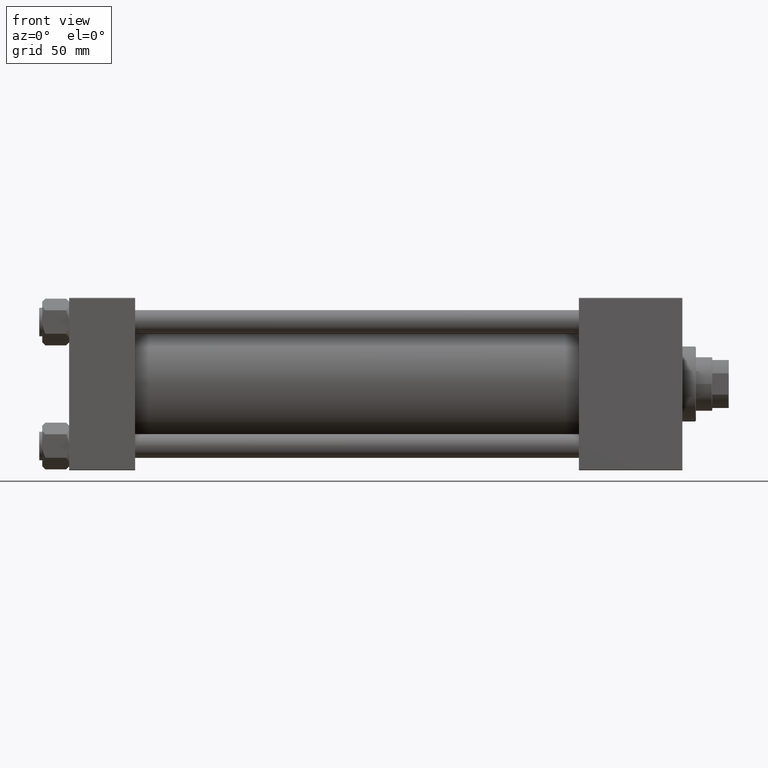
[diagram: clean part render]
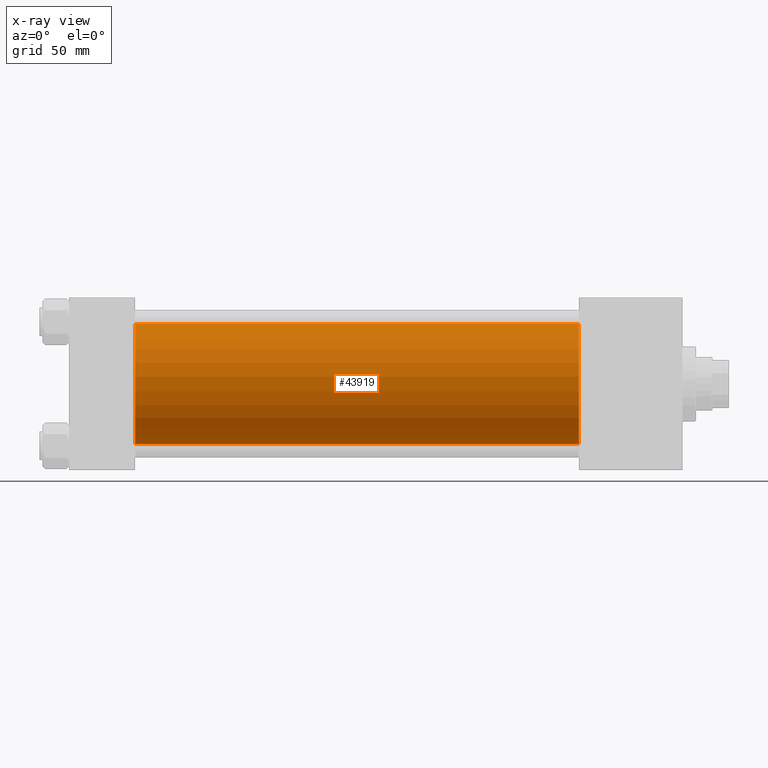
[diagram: x-ray — body ghosted, one internal face saturated and labeled with its STEP entity id]
A machine part, front view, then the same camera in x-ray: the body is ghosted and one INTERNAL B-rep face — a face not visible from any outside direction — is saturated and labeled: STEP entity #43919.
In plain terms, the highlighted cylindrical surface (partial cylindrical patch) has radius 40 mm, axis along (-1, -0, -0).
Its self-contained STEP definition (entity closure, byte-faithful):
#1905 = CARTESIAN_POINT ( 'NONE',  ( 339.9999999999999432, 2.296501982624201990E-15, -40.00000000000000000 ) ) ;
#3937 = ORIENTED_EDGE ( 'NONE', *, *, #13730, .T. ) ;
#6491 = DIRECTION ( 'NONE',  ( 0.000000000000000000, 0.000000000000000000, 1.000000000000000000 ) ) ;
#8855 = CARTESIAN_POINT ( 'NONE',  ( 44.00000000000000000, 2.296501982624201990E-15, -40.00000000000000000 ) ) ;
#8994 = CARTESIAN_POINT ( 'NONE',  ( 339.9999999999999432, -2.602085213965210642E-15, 40.00000000000000000 ) ) ;
#10781 = EDGE_CURVE ( 'NONE', #27252, #10973, #41808, .T. ) ;
#10973 = VERTEX_POINT ( 'NONE', #1905 ) ;
#11017 = CARTESIAN_POINT ( 'NONE',  ( 44.00000000000000000, -2.602085213965210642E-15, 0.000000000000000000 ) ) ;
#11537 = VERTEX_POINT ( 'NONE', #20298 ) ;
#12523 = ORIENTED_EDGE ( 'NONE', *, *, #10781, .T. ) ;
#13125 = DIRECTION ( 'NONE',  ( -1.000000000000000000, -0.000000000000000000, -0.000000000000000000 ) ) ;
#13324 = DIRECTION ( 'NONE',  ( 1.000000000000000000, 0.000000000000000000, 0.000000000000000000 ) ) ;
#13730 = EDGE_CURVE ( 'NONE', #10973, #34669, #39268, .T. ) ;
#15196 = FACE_OUTER_BOUND ( 'NONE', #49748, .T. ) ;
#16297 = AXIS2_PLACEMENT_3D ( 'NONE', #30902, #46061, #6491 ) ;
#17743 = CIRCLE ( 'NONE', #34992, 40.00000000000000000 ) ;
#20298 = CARTESIAN_POINT ( 'NONE',  ( 44.00000000000000000, -2.602085213965210642E-15, 40.00000000000000000 ) ) ;
#20990 = EDGE_CURVE ( 'NONE', #27252, #11537, #23951, .T. ) ;
#23951 = LINE ( 'NONE', #31930, #46921 ) ;
#26021 = CYLINDRICAL_SURFACE ( 'NONE', #16297, 40.00000000000000000 ) ;
#27252 = VERTEX_POINT ( 'NONE', #8994 ) ;
#30902 = CARTESIAN_POINT ( 'NONE',  ( 339.9999999999999432, -2.602085213965210642E-15, 0.000000000000000000 ) ) ;
#31604 = DIRECTION ( 'NONE',  ( 0.000000000000000000, 0.000000000000000000, -1.000000000000000000 ) ) ;
#31930 = CARTESIAN_POINT ( 'NONE',  ( 339.9999999999999432, -2.602085213965210642E-15, 40.00000000000000000 ) ) ;
#34026 = ORIENTED_EDGE ( 'NONE', *, *, #20990, .F. ) ;
#34669 = VERTEX_POINT ( 'NONE', #8855 ) ;
#34940 = DIRECTION ( 'NONE',  ( 1.000000000000000000, 0.000000000000000000, 0.000000000000000000 ) ) ;
#34992 = AXIS2_PLACEMENT_3D ( 'NONE', #11017, #34940, #31604 ) ;
#37279 = EDGE_CURVE ( 'NONE', #11537, #34669, #17743, .T. ) ;
#39268 = LINE ( 'NONE', #43619, #43571 ) ;
#40020 = DIRECTION ( 'NONE',  ( -1.000000000000000000, -0.000000000000000000, -0.000000000000000000 ) ) ;
#41808 = CIRCLE ( 'NONE', #50810, 40.00000000000000000 ) ;
#42615 = ORIENTED_EDGE ( 'NONE', *, *, #37279, .F. ) ;
#43571 = VECTOR ( 'NONE', #40020, 1000.000000000000000 ) ;
#43619 = CARTESIAN_POINT ( 'NONE',  ( 339.9999999999999432, 2.296501982624201990E-15, -40.00000000000000000 ) ) ;
#43919 = ADVANCED_FACE ( 'NONE', ( #15196 ), #26021, .F. ) ;
#46061 = DIRECTION ( 'NONE',  ( -1.000000000000000000, -0.000000000000000000, -0.000000000000000000 ) ) ;
#46921 = VECTOR ( 'NONE', #13125, 1000.000000000000000 ) ;
#48534 = DIRECTION ( 'NONE',  ( 0.000000000000000000, 0.000000000000000000, -1.000000000000000000 ) ) ;
#49531 = CARTESIAN_POINT ( 'NONE',  ( 339.9999999999999432, -2.602085213965210642E-15, 0.000000000000000000 ) ) ;
#49748 = EDGE_LOOP ( 'NONE', ( #12523, #3937, #42615, #34026 ) ) ;
#50810 = AXIS2_PLACEMENT_3D ( 'NONE', #49531, #13324, #48534 ) ;